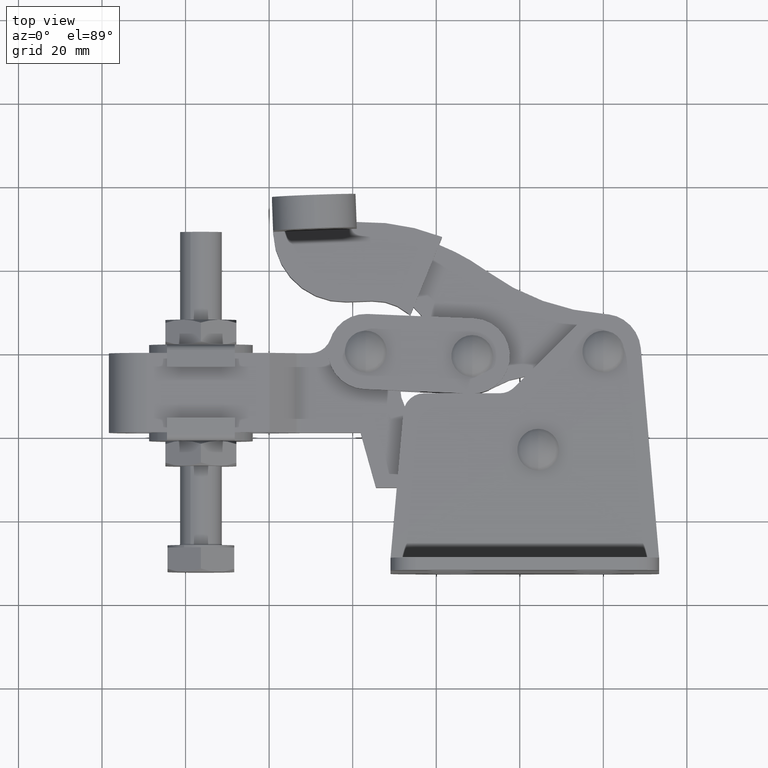
[diagram: clean part render]
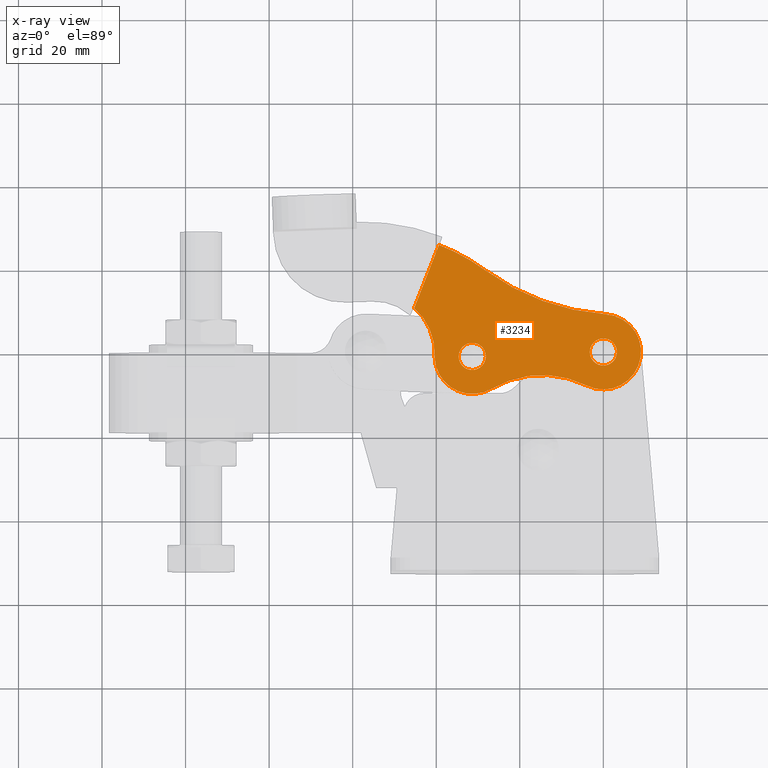
[diagram: x-ray — body ghosted, one internal face saturated and labeled with its STEP entity id]
A machine part, top view, then the same camera in x-ray: the body is ghosted and one INTERNAL B-rep face — a face not visible from any outside direction — is saturated and labeled: STEP entity #3234.
In plain terms, the highlighted planar face has unit normal (0, 0, -1).
Its self-contained STEP definition (entity closure, byte-faithful):
#97 = DIRECTION ( 'NONE',  ( -0.03703586145808815400, 0.9993139371419060800, 1.103914939257968800E-016 ) ) ;
#414 = CARTESIAN_POINT ( 'NONE',  ( -31.38186293465646100, -1.067088914026137500, -3.999949999999878900 ) ) ;
#496 = CARTESIAN_POINT ( 'NONE',  ( -39.35137046534380500, 25.60477630052100700, -3.999949999999876200 ) ) ;
#651 = DIRECTION ( 'NONE',  ( -0.03703586145808834100, 0.9993139371419060800, 0.0000000000000000000 ) ) ;
#799 = CARTESIAN_POINT ( 'NONE',  ( -31.38252976078371900, -1.048324622604314100, -3.999949999999878900 ) ) ;
#823 = VERTEX_POINT ( 'NONE', #3690 ) ;
#875 = AXIS2_PLACEMENT_3D ( 'NONE', #6175, #12261, #5143 ) ;
#887 = EDGE_CURVE ( 'NONE', #5052, #823, #10931, .T. ) ;
#1079 = AXIS2_PLACEMENT_3D ( 'NONE', #4155, #11246, #5170 ) ;
#1179 = CARTESIAN_POINT ( 'NONE',  ( -4.010036950680889100, -8.038837813249513100, -3.999949999999878900 ) ) ;
#1403 = ORIENTED_EDGE ( 'NONE', *, *, #4768, .F. ) ;
#1407 = EDGE_CURVE ( 'NONE', #8948, #10981, #5509, .T. ) ;
#1408 = DIRECTION ( 'NONE',  ( -0.03703586145808834100, 0.9993139371419060800, 0.0000000000000000000 ) ) ;
#1450 = ORIENTED_EDGE ( 'NONE', *, *, #1612, .F. ) ;
#1544 = LINE ( 'NONE', #5750, #6932 ) ;
#1612 = EDGE_CURVE ( 'NONE', #10981, #5983, #2259, .T. ) ;
#1715 = CARTESIAN_POINT ( 'NONE',  ( -28.13186293465649300, -1.067088914026137500, -3.999949999999878900 ) ) ;
#1767 = DIRECTION ( 'NONE',  ( -0.03703586145808834100, 0.9993139371419059700, 9.637352644315532400E-017 ) ) ;
#1963 = EDGE_CURVE ( 'NONE', #10706, #2857, #2720, .T. ) ;
#2070 = PLANE ( 'NONE',  #1079 ) ;
#2181 = EDGE_CURVE ( 'NONE', #2857, #10847, #3658, .T. ) ;
#2259 = CIRCLE ( 'NONE', #11059, 9.000000000000071100 ) ;
#2284 = CARTESIAN_POINT ( 'NONE',  ( -54.87203780849070300, -0.3461799880793853300, -3.999949999999880700 ) ) ;
#2385 = DIRECTION ( 'NONE',  ( -5.854722310039487800E-017, -1.157435612062013200E-016, 1.000000000000000000 ) ) ;
#2435 = CARTESIAN_POINT ( 'NONE',  ( -45.26663152030955200, 10.51596390891226400, -3.999949999999878900 ) ) ;
#2720 = CIRCLE ( 'NONE', #6485, 14.49999999999940500 ) ;
#2857 = VERTEX_POINT ( 'NONE', #12465 ) ;
#2907 = DIRECTION ( 'NONE',  ( -0.03703586145808815400, 0.9993139371419059700, 9.637352644315518800E-017 ) ) ;
#3070 = CARTESIAN_POINT ( 'NONE',  ( -0.0006667596692199788600, 0.01876422901013756500, -3.999949999999877100 ) ) ;
#3169 = DIRECTION ( 'NONE',  ( -0.03703586145808814700, 0.9993139371419060800, 0.0000000000000000000 ) ) ;
#3234 = ADVANCED_FACE ( 'NONE', ( #3776, #9488, #6480 ), #2070, .T. ) ;
#3252 = AXIS2_PLACEMENT_3D ( 'NONE', #799, #2385, #1767 ) ;
#3330 = EDGE_LOOP ( 'NONE', ( #6849, #12485 ) ) ;
#3438 = AXIS2_PLACEMENT_3D ( 'NONE', #10916, #4834, #11961 ) ;
#3658 = CIRCLE ( 'NONE', #3252, 9.000000000000058600 ) ;
#3690 = CARTESIAN_POINT ( 'NONE',  ( 3.249999999999953400, -2.106485876673539200E-032, -3.999949999999877100 ) ) ;
#3692 = ORIENTED_EDGE ( 'NONE', *, *, #2181, .F. ) ;
#3703 = CIRCLE ( 'NONE', #10774, 3.249999999999968900 ) ;
#3776 = FACE_BOUND ( 'NONE', #3330, .T. ) ;
#3809 = ORIENTED_EDGE ( 'NONE', *, *, #8388, .F. ) ;
#3930 = CARTESIAN_POINT ( 'NONE',  ( 5.549022657945216400E-017, 7.146398778510728300E-018, -3.999949999999877100 ) ) ;
#4155 = CARTESIAN_POINT ( 'NONE',  ( 14.67043391184959800, 4.989764149900515200, -3.999949999999875300 ) ) ;
#4192 = ORIENTED_EDGE ( 'NONE', *, *, #1407, .F. ) ;
#4193 = EDGE_CURVE ( 'NONE', #5983, #8900, #4843, .T. ) ;
#4194 = CARTESIAN_POINT ( 'NONE',  ( 5.549022657945216400E-017, 7.146398778510728300E-018, -3.999949999999877100 ) ) ;
#4468 = CARTESIAN_POINT ( 'NONE',  ( 0.6030432181779824500, 8.998493304135344300, -3.999949999999876200 ) ) ;
#4634 = ORIENTED_EDGE ( 'NONE', *, *, #887, .F. ) ;
#4716 = AXIS2_PLACEMENT_3D ( 'NONE', #5037, #12158, #6065 ) ;
#4768 = EDGE_CURVE ( 'NONE', #10847, #8948, #4987, .T. ) ;
#4834 = DIRECTION ( 'NONE',  ( -5.854722310039487800E-017, -1.157435612062013200E-016, 1.000000000000000000 ) ) ;
#4843 = CIRCLE ( 'NONE', #8216, 54.99999999999996400 ) ;
#4936 = DIRECTION ( 'NONE',  ( -0.03703586145808814700, 0.9993139371419060800, 0.0000000000000000000 ) ) ;
#4987 = CIRCLE ( 'NONE', #4716, 9.000000000000058600 ) ;
#5013 = CARTESIAN_POINT ( 'NONE',  ( -26.83365168653659800, -8.814128397207097600, -3.999949999999880700 ) ) ;
#5037 = CARTESIAN_POINT ( 'NONE',  ( -31.38252976078371900, -1.048324622604314100, -3.999949999999878900 ) ) ;
#5052 = VERTEX_POINT ( 'NONE', #5872 ) ;
#5143 = DIRECTION ( 'NONE',  ( -0.03703586145808815400, 0.9993139371419060800, 1.084202172485503800E-016 ) ) ;
#5170 = DIRECTION ( 'NONE',  ( -0.03703586145808814700, 0.9993139371419059700, 1.134958070042921700E-016 ) ) ;
#5305 = DIRECTION ( 'NONE',  ( -0.03703586145808829300, 0.9993139371419059700, 1.196361017915088500E-016 ) ) ;
#5478 = EDGE_CURVE ( 'NONE', #11296, #6860, #3703, .T. ) ;
#5509 = CIRCLE ( 'NONE', #875, 24.00000000000001400 ) ;
#5750 = CARTESIAN_POINT ( 'NONE',  ( -39.16001423547930200, 26.09289309292650600, -3.999949999999876200 ) ) ;
#5872 = CARTESIAN_POINT ( 'NONE',  ( -3.249999999999953400, 3.980102097228841000E-016, -3.999949999999877100 ) ) ;
#5983 = VERTEX_POINT ( 'NONE', #4468 ) ;
#6065 = DIRECTION ( 'NONE',  ( -0.03703586145808834100, 0.9993139371419059700, 9.637352644315532400E-017 ) ) ;
#6132 = DIRECTION ( 'NONE',  ( 5.854722310039487800E-017, 1.157435612062013200E-016, -1.000000000000000000 ) ) ;
#6175 = CARTESIAN_POINT ( 'NONE',  ( -14.70518593016066200, -29.52403709803003600, -3.999949999999882400 ) ) ;
#6263 = ORIENTED_EDGE ( 'NONE', *, *, #10260, .F. ) ;
#6273 = CARTESIAN_POINT ( 'NONE',  ( -34.63186293465642500, -1.067088914026137000, -3.999949999999878900 ) ) ;
#6480 = FACE_OUTER_BOUND ( 'NONE', #11143, .T. ) ;
#6485 = AXIS2_PLACEMENT_3D ( 'NONE', #2284, #11632, #5305 ) ;
#6660 = AXIS2_PLACEMENT_3D ( 'NONE', #414, #7463, #1408 ) ;
#6705 = DIRECTION ( 'NONE',  ( 5.854722310039487800E-017, 1.157435612062013200E-016, -1.000000000000000000 ) ) ;
#6849 = ORIENTED_EDGE ( 'NONE', *, *, #5478, .F. ) ;
#6860 = VERTEX_POINT ( 'NONE', #6273 ) ;
#6895 = ORIENTED_EDGE ( 'NONE', *, *, #1963, .F. ) ;
#6901 = AXIS2_PLACEMENT_3D ( 'NONE', #3930, #11020, #4936 ) ;
#6932 = VECTOR ( 'NONE', #9785, 999.9999999999998900 ) ;
#6972 = ORIENTED_EDGE ( 'NONE', *, *, #11277, .F. ) ;
#7101 = DIRECTION ( 'NONE',  ( -5.854722310039487800E-017, -1.157435612062013200E-016, 1.000000000000000000 ) ) ;
#7233 = CIRCLE ( 'NONE', #6901, 3.249999999999954300 ) ;
#7308 = AXIS2_PLACEMENT_3D ( 'NONE', #4194, #10287, #3169 ) ;
#7463 = DIRECTION ( 'NONE',  ( 5.854722310039487800E-017, 1.157435612062013200E-016, -1.000000000000000000 ) ) ;
#7719 = EDGE_LOOP ( 'NONE', ( #3809, #4634 ) ) ;
#8216 = AXIS2_PLACEMENT_3D ( 'NONE', #12220, #6132, #97 ) ;
#8388 = EDGE_CURVE ( 'NONE', #823, #5052, #7233, .T. ) ;
#8584 = EDGE_CURVE ( 'NONE', #6860, #11296, #12779, .T. ) ;
#8649 = VERTEX_POINT ( 'NONE', #496 ) ;
#8900 = VERTEX_POINT ( 'NONE', #12048 ) ;
#8948 = VERTEX_POINT ( 'NONE', #5013 ) ;
#9029 = CIRCLE ( 'NONE', #3438, 49.94008311876633900 ) ;
#9488 = FACE_BOUND ( 'NONE', #7719, .T. ) ;
#9785 = DIRECTION ( 'NONE',  ( -0.3649848341024365900, -0.9310134643898642100, -1.291276624098617400E-016 ) ) ;
#9846 = CARTESIAN_POINT ( 'NONE',  ( -40.37635519506093100, -1.381647375727109900, -3.999949999999879800 ) ) ;
#10260 = EDGE_CURVE ( 'NONE', #8900, #8649, #9029, .T. ) ;
#10287 = DIRECTION ( 'NONE',  ( 5.854722310039487800E-017, 1.157435612062013200E-016, -1.000000000000000000 ) ) ;
#10706 = VERTEX_POINT ( 'NONE', #2435 ) ;
#10774 = AXIS2_PLACEMENT_3D ( 'NONE', #12769, #6705, #651 ) ;
#10847 = VERTEX_POINT ( 'NONE', #9846 ) ;
#10916 = CARTESIAN_POINT ( 'NONE',  ( -57.57874341750861900, -20.89011349579942600, -3.999949999999883300 ) ) ;
#10931 = CIRCLE ( 'NONE', #7308, 3.249999999999954300 ) ;
#10981 = VERTEX_POINT ( 'NONE', #1179 ) ;
#11020 = DIRECTION ( 'NONE',  ( 5.854722310039487800E-017, 1.157435612062013200E-016, -1.000000000000000000 ) ) ;
#11059 = AXIS2_PLACEMENT_3D ( 'NONE', #3070, #7101, #2907 ) ;
#11143 = EDGE_LOOP ( 'NONE', ( #12568, #1450, #4192, #1403, #3692, #6895, #6972, #6263 ) ) ;
#11246 = DIRECTION ( 'NONE',  ( 5.854722310039487800E-017, 1.157435612062013200E-016, -1.000000000000000000 ) ) ;
#11277 = EDGE_CURVE ( 'NONE', #8649, #10706, #1544, .T. ) ;
#11296 = VERTEX_POINT ( 'NONE', #1715 ) ;
#11632 = DIRECTION ( 'NONE',  ( 5.854722310039487800E-017, 1.157435612062013200E-016, -1.000000000000000000 ) ) ;
#11961 = DIRECTION ( 'NONE',  ( -0.03703586145808365100, 0.9993139371419061900, 1.215763328122552200E-016 ) ) ;
#12048 = CARTESIAN_POINT ( 'NONE',  ( -28.13567028795724700, 19.44742914870463900, -3.999949999999877100 ) ) ;
#12158 = DIRECTION ( 'NONE',  ( -5.854722310039487800E-017, -1.157435612062013200E-016, 1.000000000000000000 ) ) ;
#12220 = CARTESIAN_POINT ( 'NONE',  ( 4.286379140180012600, 63.87501867232632700, -3.999949999999870400 ) ) ;
#12261 = DIRECTION ( 'NONE',  ( 5.854722310039487800E-017, 1.157435612062013200E-016, -1.000000000000000000 ) ) ;
#12465 = CARTESIAN_POINT ( 'NONE',  ( -40.37854265709113800, -0.7804590416284837900, -3.999949999999879800 ) ) ;
#12485 = ORIENTED_EDGE ( 'NONE', *, *, #8584, .F. ) ;
#12568 = ORIENTED_EDGE ( 'NONE', *, *, #4193, .F. ) ;
#12769 = CARTESIAN_POINT ( 'NONE',  ( -31.38186293465646100, -1.067088914026137500, -3.999949999999878900 ) ) ;
#12779 = CIRCLE ( 'NONE', #6660, 3.249999999999968900 ) ;